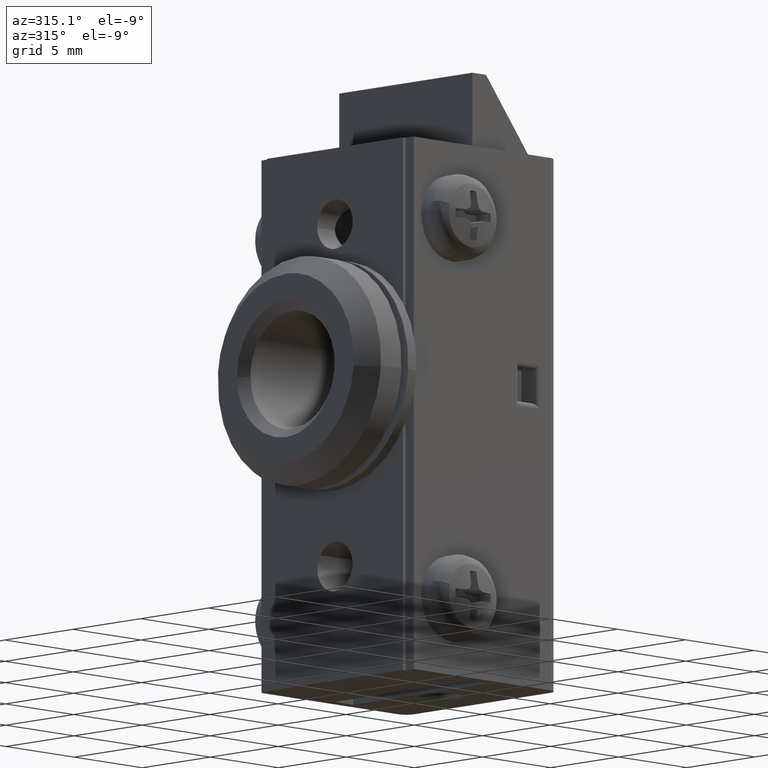
[diagram: clean part render]
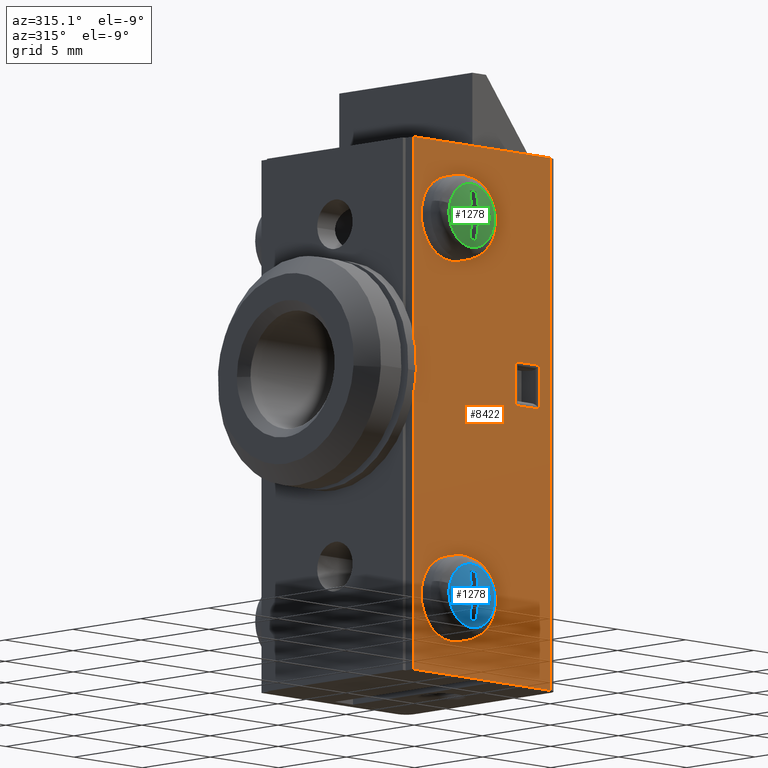
[diagram: same view with three faces highlighted in distinct colors, each labeled with its STEP entity id]
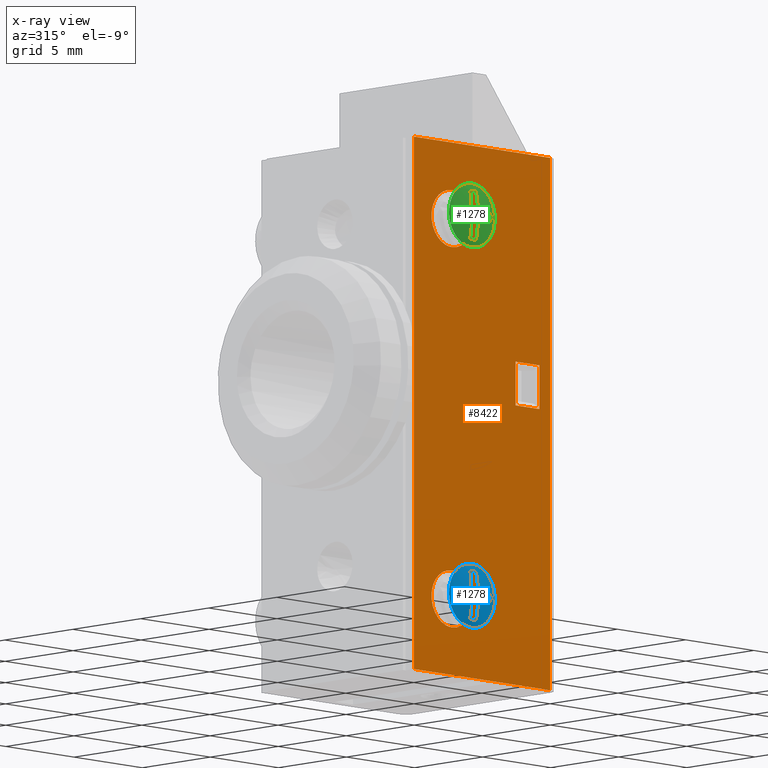
[diagram: x-ray of the same camera — body ghosted, the three highlighted faces saturated]
A machine part, auxiliary view with three faces highlighted in distinct colors.
The next image is the same camera in x-ray (body ghosted, the three faces saturated) — at least one of them is partly hidden behind the body in this view.
Their STEP definitions:

[orange] entity #8422 — the highlighted face is a freeform B-spline surface patch.
#5802=CARTESIAN_POINT('',(-9.288386320728851,-5.600006000000100,23.813807996805689));
#5803=VERTEX_POINT('',#5802);
#5809=CARTESIAN_POINT('',(-7.799986999999869,-5.600006000000100,22.500000000000000));
#5810=VERTEX_POINT('',#5809);
#5811=CARTESIAN_POINT('',(-9.288386320728852,-5.600006000000100,23.813807996805686));
#5812=CARTESIAN_POINT('',(-9.124034900091509,-5.600006000000100,22.500000000000000));
#5813=CARTESIAN_POINT('',(-7.799986999999869,-5.600006000000100,22.500000000000000));
#5821=(BOUNDED_CURVE()B_SPLINE_CURVE(2,(#5811,#5812,#5813),.UNSPECIFIED.,.F.,.U.)B_SPLINE_CURVE_WITH_KNOTS((3,3),(0.271473928987599,0.500000000000000),.UNSPECIFIED.)CURVE()GEOMETRIC_REPRESENTATION_ITEM()RATIONAL_B_SPLINE_CURVE((0.954005430241926,0.732265053913545,1.0))REPRESENTATION_ITEM(''));
#5822=EDGE_CURVE('',#5803,#5810,#5821,.T.);
#5824=CARTESIAN_POINT('',(-6.300044115405084,-5.600006000000100,24.013089803416079));
#5825=VERTEX_POINT('',#5824);
#5826=CARTESIAN_POINT('',(-7.799986999999869,-5.600006000000100,22.500000000000000));
#5827=CARTESIAN_POINT('',(-6.299986999999871,-5.600006000000100,22.500000000000000));
#5828=CARTESIAN_POINT('',(-6.299986999999870,-5.600006000000100,24.0));
#5829=CARTESIAN_POINT('',(-6.299986999999870,-5.600006000000100,24.006545026399582));
#5830=CARTESIAN_POINT('',(-6.300044115405084,-5.600006000000100,24.013089803416079));
#5838=(BOUNDED_CURVE()B_SPLINE_CURVE(2,(#5826,#5827,#5828,#5829,#5830),.UNSPECIFIED.,.F.,.U.)B_SPLINE_CURVE_WITH_KNOTS((3,2,3),(0.500000000000000,0.750000000000000,0.751539894374566),.UNSPECIFIED.)CURVE()GEOMETRIC_REPRESENTATION_ITEM()RATIONAL_B_SPLINE_CURVE((1.0,0.707106781186548,1.0,0.998195901520002,0.996414028008809))REPRESENTATION_ITEM(''));
#5839=EDGE_CURVE('',#5810,#5825,#5838,.T.);
#5919=CARTESIAN_POINT('',(-7.799986999999869,-5.600006000000100,25.500000000000000));
#5920=VERTEX_POINT('',#5919);
#5921=CARTESIAN_POINT('',(-6.300044115405084,-5.600006000000100,24.013089803416076));
#5922=CARTESIAN_POINT('',(-6.313020184441538,-5.600006000000100,25.500000000000011));
#5923=CARTESIAN_POINT('',(-7.799986999999869,-5.600006000000100,25.500000000000000));
#5931=(BOUNDED_CURVE()B_SPLINE_CURVE(2,(#5921,#5922,#5923),.UNSPECIFIED.,.F.,.U.)B_SPLINE_CURVE_WITH_KNOTS((3,3),(0.751539894374566,1.0),.UNSPECIFIED.)CURVE()GEOMETRIC_REPRESENTATION_ITEM()RATIONAL_B_SPLINE_CURVE((0.996414028008808,0.708910879666546,1.0))REPRESENTATION_ITEM(''));
#5932=EDGE_CURVE('',#5825,#5920,#5931,.T.);
#5934=CARTESIAN_POINT('',(-7.799986999999869,-5.600006000000100,25.500000000000000));
#5935=CARTESIAN_POINT('',(-9.299986999999868,-5.600006000000100,25.500000000000007));
#5936=CARTESIAN_POINT('',(-9.299986999999868,-5.600006000000100,24.0));
#5937=CARTESIAN_POINT('',(-9.299986999999870,-5.600006000000101,23.906542608624314));
#5938=CARTESIAN_POINT('',(-9.288386320728851,-5.600006000000100,23.813807996805693));
#5946=(BOUNDED_CURVE()B_SPLINE_CURVE(2,(#5934,#5935,#5936,#5937,#5938),.UNSPECIFIED.,.F.,.U.)B_SPLINE_CURVE_WITH_KNOTS((3,2,3),(0.0,0.250000000000000,0.271473928987599),.UNSPECIFIED.)CURVE()GEOMETRIC_REPRESENTATION_ITEM()RATIONAL_B_SPLINE_CURVE((1.0,0.707106781186548,1.0,0.974841727273002,0.954005430241926))REPRESENTATION_ITEM(''));
#5947=EDGE_CURVE('',#5920,#5803,#5946,.T.);
#6174=CARTESIAN_POINT('',(-9.288386320728849,-5.600006000000101,3.813807996805804));
#6175=VERTEX_POINT('',#6174);
#6181=CARTESIAN_POINT('',(-7.799986999999869,-5.600006000000100,2.500000000000116));
#6182=VERTEX_POINT('',#6181);
#6183=CARTESIAN_POINT('',(-9.288386320728849,-5.600006000000101,3.813807996805805));
#6184=CARTESIAN_POINT('',(-9.124034900091509,-5.600006000000099,2.500000000000116));
#6185=CARTESIAN_POINT('',(-7.799986999999869,-5.600006000000100,2.500000000000116));
#6193=(BOUNDED_CURVE()B_SPLINE_CURVE(2,(#6183,#6184,#6185),.UNSPECIFIED.,.F.,.U.)B_SPLINE_CURVE_WITH_KNOTS((3,3),(0.271473928987599,0.500000000000000),.UNSPECIFIED.)CURVE()GEOMETRIC_REPRESENTATION_ITEM()RATIONAL_B_SPLINE_CURVE((0.954005430241926,0.732265053913545,1.0))REPRESENTATION_ITEM(''));
#6194=EDGE_CURVE('',#6175,#6182,#6193,.T.);
#6196=CARTESIAN_POINT('',(-6.300044115405084,-5.600006000000100,4.013089803416197));
#6197=VERTEX_POINT('',#6196);
#6198=CARTESIAN_POINT('',(-7.799986999999869,-5.600006000000100,2.500000000000116));
#6199=CARTESIAN_POINT('',(-6.299986999999871,-5.600006000000100,2.500000000000116));
#6200=CARTESIAN_POINT('',(-6.299986999999870,-5.600006000000100,4.000000000000116));
#6201=CARTESIAN_POINT('',(-6.299986999999870,-5.600006000000100,4.006545026399695));
#6202=CARTESIAN_POINT('',(-6.300044115405084,-5.600006000000100,4.013089803416197));
#6210=(BOUNDED_CURVE()B_SPLINE_CURVE(2,(#6198,#6199,#6200,#6201,#6202),.UNSPECIFIED.,.F.,.U.)B_SPLINE_CURVE_WITH_KNOTS((3,2,3),(0.500000000000000,0.750000000000000,0.751539894374566),.UNSPECIFIED.)CURVE()GEOMETRIC_REPRESENTATION_ITEM()RATIONAL_B_SPLINE_CURVE((1.0,0.707106781186548,1.0,0.998195901520002,0.996414028008809))REPRESENTATION_ITEM(''));
#6211=EDGE_CURVE('',#6182,#6197,#6210,.T.);
#6291=CARTESIAN_POINT('',(-7.799986999999869,-5.600006000000100,5.500000000000116));
#6292=VERTEX_POINT('',#6291);
#6293=CARTESIAN_POINT('',(-6.300044115405084,-5.600006000000100,4.013089803416198));
#6294=CARTESIAN_POINT('',(-6.313020184441541,-5.600006000000099,5.500000000000116));
#6295=CARTESIAN_POINT('',(-7.799986999999869,-5.600006000000100,5.500000000000116));
#6303=(BOUNDED_CURVE()B_SPLINE_CURVE(2,(#6293,#6294,#6295),.UNSPECIFIED.,.F.,.U.)B_SPLINE_CURVE_WITH_KNOTS((3,3),(0.751539894374567,1.0),.UNSPECIFIED.)CURVE()GEOMETRIC_REPRESENTATION_ITEM()RATIONAL_B_SPLINE_CURVE((0.996414028008808,0.708910879666546,1.0))REPRESENTATION_ITEM(''));
#6304=EDGE_CURVE('',#6197,#6292,#6303,.T.);
#6306=CARTESIAN_POINT('',(-7.799986999999869,-5.600006000000100,5.500000000000116));
#6307=CARTESIAN_POINT('',(-9.299986999999868,-5.600006000000100,5.500000000000115));
#6308=CARTESIAN_POINT('',(-9.299986999999868,-5.600006000000100,4.000000000000116));
#6309=CARTESIAN_POINT('',(-9.299986999999868,-5.600006000000099,3.906542608624434));
#6310=CARTESIAN_POINT('',(-9.288386320728849,-5.600006000000101,3.813807996805804));
#6318=(BOUNDED_CURVE()B_SPLINE_CURVE(2,(#6306,#6307,#6308,#6309,#6310),.UNSPECIFIED.,.F.,.U.)B_SPLINE_CURVE_WITH_KNOTS((3,2,3),(0.0,0.250000000000000,0.271473928987599),.UNSPECIFIED.)CURVE()GEOMETRIC_REPRESENTATION_ITEM()RATIONAL_B_SPLINE_CURVE((1.0,0.707106781186548,1.0,0.974841727273002,0.954005430241926))REPRESENTATION_ITEM(''));
#6319=EDGE_CURVE('',#6292,#6175,#6318,.T.);
#6739=CARTESIAN_POINT('',(-3.124264068711815,-5.600006000000090,14.700000000000159));
#6740=VERTEX_POINT('',#6739);
#6763=CARTESIAN_POINT('',(-3.124264068711815,-5.600006000000090,16.999997000000000));
#6764=VERTEX_POINT('',#6763);
#6778=CARTESIAN_POINT('',(-3.124264068711815,-5.600006000000090,14.700000000000159));
#6779=CARTESIAN_POINT('',(-3.124264068711815,-5.600006000000090,16.999997000000000));
#6780=QUASI_UNIFORM_CURVE('',1,(#6778,#6779),.UNSPECIFIED.,.F.,.U.);
#6781=EDGE_CURVE('',#6740,#6764,#6780,.T.);
#6802=CARTESIAN_POINT('',(-1.375735931288072,-5.600006000000090,16.999997000000000));
#6803=VERTEX_POINT('',#6802);
#6817=CARTESIAN_POINT('',(-3.124264068711815,-5.600006000000090,16.999997000000000));
#6818=CARTESIAN_POINT('',(-1.375735931288072,-5.600006000000090,16.999997000000000));
#6819=QUASI_UNIFORM_CURVE('',1,(#6817,#6818),.UNSPECIFIED.,.F.,.U.);
#6820=EDGE_CURVE('',#6764,#6803,#6819,.T.);
#6898=CARTESIAN_POINT('',(-1.375735931288072,-5.600006000000090,14.700000000000159));
#6899=VERTEX_POINT('',#6898);
#6900=CARTESIAN_POINT('',(-1.375735931288072,-5.600006000000090,14.700000000000159));
#6901=CARTESIAN_POINT('',(-3.124264068711815,-5.600006000000090,14.700000000000159));
#6902=QUASI_UNIFORM_CURVE('',1,(#6900,#6901),.UNSPECIFIED.,.F.,.U.);
#6903=EDGE_CURVE('',#6899,#6740,#6902,.T.);
#6956=CARTESIAN_POINT('',(-1.375735931288072,-5.600006000000090,16.999997000000000));
#6957=CARTESIAN_POINT('',(-1.375735931288072,-5.600006000000090,14.700000000000159));
#6958=QUASI_UNIFORM_CURVE('',1,(#6956,#6957),.UNSPECIFIED.,.F.,.U.);
#6959=EDGE_CURVE('',#6803,#6899,#6958,.T.);
#7889=CARTESIAN_POINT('',(-0.600000000000000,-5.600006000000090,0.0));
#7890=VERTEX_POINT('',#7889);
#7911=CARTESIAN_POINT('',(-0.600000000000000,-5.600006000000090,28.0));
#7912=VERTEX_POINT('',#7911);
#7926=CARTESIAN_POINT('',(-0.600000000000000,-5.600006000000090,0.0));
#7927=CARTESIAN_POINT('',(-0.600000000000000,-5.600006000000090,28.0));
#7928=QUASI_UNIFORM_CURVE('',1,(#7926,#7927),.UNSPECIFIED.,.F.,.U.);
#7929=EDGE_CURVE('',#7890,#7912,#7928,.T.);
#8133=CARTESIAN_POINT('',(-10.600006000000119,-5.600006000000090,28.0));
#8134=VERTEX_POINT('',#8133);
#8140=CARTESIAN_POINT('',(-10.600006000000119,-5.600006000000090,28.0));
#8141=CARTESIAN_POINT('',(-0.600000000000000,-5.600006000000090,28.0));
#8142=QUASI_UNIFORM_CURVE('',1,(#8140,#8141),.UNSPECIFIED.,.F.,.U.);
#8143=EDGE_CURVE('',#8134,#7912,#8142,.T.);
#8230=CARTESIAN_POINT('',(-10.600006000000119,-5.600006000000090,0.0));
#8231=VERTEX_POINT('',#8230);
#8237=CARTESIAN_POINT('',(-10.600006000000119,-5.600006000000090,0.0));
#8238=CARTESIAN_POINT('',(-10.600006000000119,-5.600006000000090,28.0));
#8239=QUASI_UNIFORM_CURVE('',1,(#8237,#8238),.UNSPECIFIED.,.F.,.U.);
#8240=EDGE_CURVE('',#8231,#8134,#8239,.T.);
#8322=CARTESIAN_POINT('',(-10.600006000000119,-5.600006000000090,0.0));
#8323=CARTESIAN_POINT('',(-0.600000000000000,-5.600006000000090,0.0));
#8324=QUASI_UNIFORM_CURVE('',1,(#8322,#8323),.UNSPECIFIED.,.F.,.U.);
#8325=EDGE_CURVE('',#8231,#7890,#8324,.T.);
#8393=CARTESIAN_POINT('',(-11.099506374191080,-5.600006000000090,29.398599945730570));
#8394=CARTESIAN_POINT('',(-11.099506374191080,-5.600006000000091,-1.398600696749092));
#8395=CARTESIAN_POINT('',(-0.100499446995002,-5.600006000000090,29.398599945730570));
#8396=CARTESIAN_POINT('',(-0.100499446995002,-5.600006000000091,-1.398600696749092));
#8397=B_SPLINE_SURFACE_WITH_KNOTS('',1,1,((#8393,#8395),(#8394,#8396)),.UNSPECIFIED.,.F.,.F.,.U.,(2,2),(2,2),(0.0,30.797200642479659),(0.0,10.999006927196080),.UNSPECIFIED.);
#8398=ORIENTED_EDGE('',*,*,#8325,.T.);
#8399=ORIENTED_EDGE('',*,*,#7929,.T.);
#8400=ORIENTED_EDGE('',*,*,#8143,.F.);
#8401=ORIENTED_EDGE('',*,*,#8240,.F.);
#8402=EDGE_LOOP('',(#8398,#8399,#8400,#8401));
#8403=FACE_OUTER_BOUND('',#8402,.T.);
#8404=ORIENTED_EDGE('',*,*,#6959,.T.);
#8405=ORIENTED_EDGE('',*,*,#6903,.T.);
#8406=ORIENTED_EDGE('',*,*,#6781,.T.);
#8407=ORIENTED_EDGE('',*,*,#6820,.T.);
#8408=EDGE_LOOP('',(#8404,#8405,#8406,#8407));
#8409=FACE_BOUND('',#8408,.T.);
#8410=ORIENTED_EDGE('',*,*,#6211,.F.);
#8411=ORIENTED_EDGE('',*,*,#6194,.F.);
#8412=ORIENTED_EDGE('',*,*,#6319,.F.);
#8413=ORIENTED_EDGE('',*,*,#6304,.F.);
#8414=EDGE_LOOP('',(#8410,#8411,#8412,#8413));
#8415=FACE_BOUND('',#8414,.T.);
#8416=ORIENTED_EDGE('',*,*,#5839,.F.);
#8417=ORIENTED_EDGE('',*,*,#5822,.F.);
#8418=ORIENTED_EDGE('',*,*,#5947,.F.);
#8419=ORIENTED_EDGE('',*,*,#5932,.F.);
#8420=EDGE_LOOP('',(#8416,#8417,#8418,#8419));
#8421=FACE_BOUND('',#8420,.T.);
#8422=ADVANCED_FACE('',(#8403,#8409,#8415,#8421),#8397,.T.);

[blue] entity #1278 — the highlighted face is a freeform B-spline surface patch.
#283=CARTESIAN_POINT('',(-9.409532855611982,-7.062032371019841,24.456669459876309));
#284=VERTEX_POINT('',#283);
#285=CARTESIAN_POINT('',(-7.799986999999869,-7.062033736562820,25.673076858853719));
#286=VERTEX_POINT('',#285);
#287=CARTESIAN_POINT('',(-9.409532855611982,-7.062032371019841,24.456669459876309));
#288=CARTESIAN_POINT('',(-9.064407083830481,-7.062033053791332,25.673076805068089));
#289=CARTESIAN_POINT('',(-7.799986999999869,-7.062033736562820,25.673076858853719));
#297=(BOUNDED_CURVE()B_SPLINE_CURVE(2,(#287,#288,#289),.UNSPECIFIED.,.F.,.U.)B_SPLINE_CURVE_WITH_KNOTS((3,3),(0.796505535840531,1.0),.UNSPECIFIED.)CURVE()GEOMETRIC_REPRESENTATION_ITEM()RATIONAL_B_SPLINE_CURVE((0.911301444520160,0.761591405526458,1.0))REPRESENTATION_ITEM(''));
#298=EDGE_CURVE('',#284,#286,#297,.T.);
#300=CARTESIAN_POINT('',(-6.190441144387757,-7.062032371019841,23.543330540123691));
#301=VERTEX_POINT('',#300);
#302=CARTESIAN_POINT('',(-7.799986999999869,-7.062033736562820,25.673076858853719));
#303=CARTESIAN_POINT('',(-6.126910284412166,-7.062033220561354,25.673076899501964));
#304=CARTESIAN_POINT('',(-6.126910473981291,-7.062032537789865,24.000000094433869));
#305=CARTESIAN_POINT('',(-6.126910500353630,-7.062032442804558,23.767246214658382));
#306=CARTESIAN_POINT('',(-6.190441144387758,-7.062032371019841,23.543330540123694));
#314=(BOUNDED_CURVE()B_SPLINE_CURVE(2,(#302,#303,#304,#305,#306),.UNSPECIFIED.,.F.,.U.)B_SPLINE_CURVE_WITH_KNOTS((3,2,3),(0.0,0.250000000000000,0.296505535840531),.UNSPECIFIED.)CURVE()GEOMETRIC_REPRESENTATION_ITEM()RATIONAL_B_SPLINE_CURVE((1.0,0.707106781186547,1.0,0.945515375660090,0.911301444520160))REPRESENTATION_ITEM(''));
#315=EDGE_CURVE('',#286,#301,#314,.T.);
#372=CARTESIAN_POINT('',(-7.799986999999869,-7.062033736562820,22.326923141146288));
#373=VERTEX_POINT('',#372);
#374=CARTESIAN_POINT('',(-7.799986999999869,-7.062033736562820,22.326923141146288));
#375=CARTESIAN_POINT('',(-9.473063715587575,-7.062033220561354,22.326923100498043));
#376=CARTESIAN_POINT('',(-9.473063526018450,-7.062032537789865,23.999999905566131));
#377=CARTESIAN_POINT('',(-9.473063499646111,-7.062032442804558,24.232753785341622));
#378=CARTESIAN_POINT('',(-9.409532855611982,-7.062032371019841,24.456669459876309));
#386=(BOUNDED_CURVE()B_SPLINE_CURVE(2,(#374,#375,#376,#377,#378),.UNSPECIFIED.,.F.,.U.)B_SPLINE_CURVE_WITH_KNOTS((3,2,3),(0.500000000000000,0.750000000000000,0.796505535840531),.UNSPECIFIED.)CURVE()GEOMETRIC_REPRESENTATION_ITEM()RATIONAL_B_SPLINE_CURVE((1.0,0.707106781186547,1.0,0.945515375660090,0.911301444520160))REPRESENTATION_ITEM(''));
#387=EDGE_CURVE('',#373,#284,#386,.T.);
#394=CARTESIAN_POINT('',(-6.190441144387758,-7.062032371019841,23.543330540123694));
#395=CARTESIAN_POINT('',(-6.535566916169260,-7.062033053791332,22.326923194931911));
#396=CARTESIAN_POINT('',(-7.799986999999869,-7.062033736562820,22.326923141146288));
#404=(BOUNDED_CURVE()B_SPLINE_CURVE(2,(#394,#395,#396),.UNSPECIFIED.,.F.,.U.)B_SPLINE_CURVE_WITH_KNOTS((3,3),(0.296505535840531,0.500000000000000),.UNSPECIFIED.)CURVE()GEOMETRIC_REPRESENTATION_ITEM()RATIONAL_B_SPLINE_CURVE((0.911301444520160,0.761591405526458,1.0))REPRESENTATION_ITEM(''));
#405=EDGE_CURVE('',#301,#373,#404,.T.);
#595=CARTESIAN_POINT('',(-8.141166050717381,-7.280587019466419,24.341178867877002));
#596=VERTEX_POINT('',#595);
#603=CARTESIAN_POINT('',(-8.047688999999879,-7.266322334240530,24.584695000000199));
#604=VERTEX_POINT('',#603);
#610=CARTESIAN_POINT('',(-8.141166050717384,-7.280587019466426,24.341178867877002));
#611=CARTESIAN_POINT('',(-8.094371719086645,-7.276302203356472,24.463082314300916));
#612=CARTESIAN_POINT('',(-8.047688999999879,-7.266322334240529,24.584695000000199));
#620=(BOUNDED_CURVE()B_SPLINE_CURVE(2,(#610,#611,#612),.UNSPECIFIED.,.F.,.U.)CURVE()GEOMETRIC_REPRESENTATION_ITEM()QUASI_UNIFORM_CURVE()RATIONAL_B_SPLINE_CURVE((1.0,0.999761736042455,1.0))REPRESENTATION_ITEM(''));
#621=EDGE_CURVE('',#596,#604,#620,.T.);
#631=CARTESIAN_POINT('',(-8.384701422791810,-7.266320650991710,24.247696695883452));
#632=VERTEX_POINT('',#631);
#640=CARTESIAN_POINT('',(-8.384701422791810,-7.266320650991710,24.247696695883452));
#641=CARTESIAN_POINT('',(-8.263079143746344,-7.276301794542070,24.294381965386169));
#642=CARTESIAN_POINT('',(-8.141166050717381,-7.280587019466419,24.341178867877002));
#650=(BOUNDED_CURVE()B_SPLINE_CURVE(2,(#640,#641,#642),.UNSPECIFIED.,.F.,.U.)CURVE()GEOMETRIC_REPRESENTATION_ITEM()QUASI_UNIFORM_CURVE()RATIONAL_B_SPLINE_CURVE((1.0,0.999761699803784,1.0))REPRESENTATION_ITEM(''));
#651=EDGE_CURVE('',#632,#596,#650,.T.);
#661=CARTESIAN_POINT('',(-9.078461215119310,-7.157493065141100,24.235587048610601));
#662=VERTEX_POINT('',#661);
#670=CARTESIAN_POINT('',(-9.078461215119308,-7.157493065141098,24.235587048610590));
#671=CARTESIAN_POINT('',(-8.734774047114977,-7.232266229918767,24.241586142854388));
#672=CARTESIAN_POINT('',(-8.384701422791810,-7.266320650991708,24.247696695883430));
#680=(BOUNDED_CURVE()B_SPLINE_CURVE(2,(#670,#671,#672),.UNSPECIFIED.,.F.,.U.)CURVE()GEOMETRIC_REPRESENTATION_ITEM()QUASI_UNIFORM_CURVE()RATIONAL_B_SPLINE_CURVE((1.0,0.998282533637158,1.0))REPRESENTATION_ITEM(''));
#681=EDGE_CURVE('',#662,#632,#680,.T.);
#700=CARTESIAN_POINT('',(-9.078464999999879,-7.157492858242850,23.764405000000000));
#701=VERTEX_POINT('',#700);
#702=CARTESIAN_POINT('',(-9.078461215119310,-7.157493065141100,24.235587048610601));
#703=CARTESIAN_POINT('',(-9.121876558919917,-7.157492961691975,23.999995905188630));
#704=CARTESIAN_POINT('',(-9.078464999999879,-7.157492858242850,23.764405000000000));
#712=(BOUNDED_CURVE()B_SPLINE_CURVE(2,(#702,#703,#704),.UNSPECIFIED.,.F.,.U.)CURVE()GEOMETRIC_REPRESENTATION_ITEM()QUASI_UNIFORM_CURVE()RATIONAL_B_SPLINE_CURVE((1.0,0.983441911933026,1.0))REPRESENTATION_ITEM(''));
#713=EDGE_CURVE('',#662,#701,#712,.T.);
#730=CARTESIAN_POINT('',(-8.384661484994719,-7.266324203073791,23.752294589543300));
#731=VERTEX_POINT('',#730);
#739=CARTESIAN_POINT('',(-8.384661484994719,-7.266324203073788,23.752294589543339));
#740=CARTESIAN_POINT('',(-8.734756209401665,-7.232270004842940,23.758405528331615));
#741=CARTESIAN_POINT('',(-9.078464999999879,-7.157492858242850,23.764405000000000));
#749=(BOUNDED_CURVE()B_SPLINE_CURVE(2,(#739,#740,#741),.UNSPECIFIED.,.F.,.U.)CURVE()GEOMETRIC_REPRESENTATION_ITEM()QUASI_UNIFORM_CURVE()RATIONAL_B_SPLINE_CURVE((1.0,0.998282319381432,1.0))REPRESENTATION_ITEM(''));
#750=EDGE_CURVE('',#731,#701,#749,.T.);
#760=CARTESIAN_POINT('',(-8.141163941885049,-7.280587324002140,23.658824361556949));
#761=VERTEX_POINT('',#760);
#769=CARTESIAN_POINT('',(-8.141163941885063,-7.280587324002136,23.658824361556910));
#770=CARTESIAN_POINT('',(-8.263058066736507,-7.276302857251062,23.705615271619344));
#771=CARTESIAN_POINT('',(-8.384661484994712,-7.266324203073791,23.752294589543300));
#779=(BOUNDED_CURVE()B_SPLINE_CURVE(2,(#769,#770,#771),.UNSPECIFIED.,.F.,.U.)CURVE()GEOMETRIC_REPRESENTATION_ITEM()QUASI_UNIFORM_CURVE()RATIONAL_B_SPLINE_CURVE((1.0,0.999761772286104,1.0))REPRESENTATION_ITEM(''));
#780=EDGE_CURVE('',#761,#731,#779,.T.);
#790=CARTESIAN_POINT('',(-8.047688681351081,-7.266321990220420,23.415301354592302));
#791=VERTEX_POINT('',#790);
#799=CARTESIAN_POINT('',(-8.047688681351081,-7.266321990220420,23.415301354592302));
#800=CARTESIAN_POINT('',(-8.094370502839071,-7.276302310019867,23.536917470694551));
#801=CARTESIAN_POINT('',(-8.141163941885049,-7.280587324002140,23.658824361556949));
#809=(BOUNDED_CURVE()B_SPLINE_CURVE(2,(#799,#800,#801),.UNSPECIFIED.,.F.,.U.)CURVE()GEOMETRIC_REPRESENTATION_ITEM()QUASI_UNIFORM_CURVE()RATIONAL_B_SPLINE_CURVE((1.0,0.999761725462945,1.0))REPRESENTATION_ITEM(''));
#810=EDGE_CURVE('',#791,#761,#809,.T.);
#820=CARTESIAN_POINT('',(-8.035576943547040,-7.157492944554560,22.721525765858850));
#821=VERTEX_POINT('',#820);
#829=CARTESIAN_POINT('',(-8.035576943547040,-7.157492944554560,22.721525765858850));
#830=CARTESIAN_POINT('',(-8.041577080444807,-7.232267765608499,23.065220714661077));
#831=CARTESIAN_POINT('',(-8.047688681351081,-7.266321990220420,23.415301354592302));
#839=(BOUNDED_CURVE()B_SPLINE_CURVE(2,(#829,#830,#831),.UNSPECIFIED.,.F.,.U.)CURVE()GEOMETRIC_REPRESENTATION_ITEM()QUASI_UNIFORM_CURVE()RATIONAL_B_SPLINE_CURVE((1.0,0.998282455879265,1.0))REPRESENTATION_ITEM(''));
#840=EDGE_CURVE('',#821,#791,#839,.T.);
#859=CARTESIAN_POINT('',(-7.564398999999870,-7.157492858242850,22.721526000000001));
#860=VERTEX_POINT('',#859);
#861=CARTESIAN_POINT('',(-8.035576943547040,-7.157492944554560,22.721525765858850));
#862=CARTESIAN_POINT('',(-7.799987950200941,-7.157492858242860,22.678112373763181));
#863=CARTESIAN_POINT('',(-7.564398999999870,-7.157492858242850,22.721526000000001));
#871=(BOUNDED_CURVE()B_SPLINE_CURVE(2,(#861,#862,#863),.UNSPECIFIED.,.F.,.U.)CURVE()GEOMETRIC_REPRESENTATION_ITEM()QUASI_UNIFORM_CURVE()RATIONAL_B_SPLINE_CURVE((1.0,0.983442143036417,1.0))REPRESENTATION_ITEM(''));
#872=EDGE_CURVE('',#821,#860,#871,.T.);
#889=CARTESIAN_POINT('',(-7.552289307963649,-7.266320098038590,23.415280357006601));
#890=VERTEX_POINT('',#889);
#898=CARTESIAN_POINT('',(-7.552289307963643,-7.266320098038592,23.415280357006608));
#899=CARTESIAN_POINT('',(-7.558399883694699,-7.232265637627360,23.065210468807958));
#900=CARTESIAN_POINT('',(-7.564398999999870,-7.157492858242850,22.721526000000001));
#908=(BOUNDED_CURVE()B_SPLINE_CURVE(2,(#898,#899,#900),.UNSPECIFIED.,.F.,.U.)CURVE()GEOMETRIC_REPRESENTATION_ITEM()QUASI_UNIFORM_CURVE()RATIONAL_B_SPLINE_CURVE((1.0,0.998282560085386,1.0))REPRESENTATION_ITEM(''));
#909=EDGE_CURVE('',#890,#860,#908,.T.);
#919=CARTESIAN_POINT('',(-7.458804848275101,-7.280586537809750,23.658815790166749));
#920=VERTEX_POINT('',#919);
#928=CARTESIAN_POINT('',(-7.458804848275110,-7.280586537809756,23.658815790166759));
#929=CARTESIAN_POINT('',(-7.505602895691931,-7.276301296481652,23.536902663785359));
#930=CARTESIAN_POINT('',(-7.552289307963647,-7.266320098038595,23.415280357006601));
#938=(BOUNDED_CURVE()B_SPLINE_CURVE(2,(#928,#929,#930),.UNSPECIFIED.,.F.,.U.)CURVE()GEOMETRIC_REPRESENTATION_ITEM()QUASI_UNIFORM_CURVE()RATIONAL_B_SPLINE_CURVE((1.0,0.999761698176571,1.0))REPRESENTATION_ITEM(''));
#939=EDGE_CURVE('',#920,#890,#938,.T.);
#949=CARTESIAN_POINT('',(-7.215280035545800,-7.266321170387810,23.752298208840848));
#950=VERTEX_POINT('',#949);
#958=CARTESIAN_POINT('',(-7.215280035545800,-7.266321170387810,23.752298208840848));
#959=CARTESIAN_POINT('',(-7.336897047219473,-7.276301599779382,23.705612811046848));
#960=CARTESIAN_POINT('',(-7.458804848275101,-7.280586537809750,23.658815790166749));
#968=(BOUNDED_CURVE()B_SPLINE_CURVE(2,(#958,#959,#960),.UNSPECIFIED.,.F.,.U.)CURVE()GEOMETRIC_REPRESENTATION_ITEM()QUASI_UNIFORM_CURVE()RATIONAL_B_SPLINE_CURVE((1.0,0.999761717680049,1.0))REPRESENTATION_ITEM(''));
#969=EDGE_CURVE('',#950,#920,#968,.T.);
#979=CARTESIAN_POINT('',(-6.521512720740530,-7.157492851489180,23.764407987419599));
#980=VERTEX_POINT('',#979);
#988=CARTESIAN_POINT('',(-6.521512720740528,-7.157492851489186,23.764407987419581));
#989=CARTESIAN_POINT('',(-6.865203593941339,-7.232266823782491,23.758408828501061));
#990=CARTESIAN_POINT('',(-7.215280035545797,-7.266321170387817,23.752298208840848));
#998=(BOUNDED_CURVE()B_SPLINE_CURVE(2,(#988,#989,#990),.UNSPECIFIED.,.F.,.U.)CURVE()GEOMETRIC_REPRESENTATION_ITEM()QUASI_UNIFORM_CURVE()RATIONAL_B_SPLINE_CURVE((1.0,0.998282496576275,1.0))REPRESENTATION_ITEM(''));
#999=EDGE_CURVE('',#980,#950,#998,.T.);
#1018=CARTESIAN_POINT('',(-6.521511999999860,-7.157492858242850,24.235599000000100));
#1019=VERTEX_POINT('',#1018);
#1020=CARTESIAN_POINT('',(-6.521512720740530,-7.157492851489180,23.764407987419599));
#1021=CARTESIAN_POINT('',(-6.478097186225894,-7.157492854866015,24.000003606273598));
#1022=CARTESIAN_POINT('',(-6.521511999999860,-7.157492858242850,24.235599000000100));
#1030=(BOUNDED_CURVE()B_SPLINE_CURVE(2,(#1020,#1021,#1022),.UNSPECIFIED.,.F.,.U.)CURVE()GEOMETRIC_REPRESENTATION_ITEM()QUASI_UNIFORM_CURVE()RATIONAL_B_SPLINE_CURVE((1.0,0.983441260386393,1.0))REPRESENTATION_ITEM(''));
#1031=EDGE_CURVE('',#980,#1019,#1030,.T.);
#1048=CARTESIAN_POINT('',(-7.215306059646110,-7.266323411251820,24.247709245412750));
#1049=VERTEX_POINT('',#1048);
#1057=CARTESIAN_POINT('',(-7.215306059646115,-7.266323411251821,24.247709245412761));
#1058=CARTESIAN_POINT('',(-6.865216091658626,-7.232269296306245,24.241598389648171));
#1059=CARTESIAN_POINT('',(-6.521511999999860,-7.157492858242850,24.235599000000100));
#1067=(BOUNDED_CURVE()B_SPLINE_CURVE(2,(#1057,#1058,#1059),.UNSPECIFIED.,.F.,.U.)CURVE()GEOMETRIC_REPRESENTATION_ITEM()QUASI_UNIFORM_CURVE()RATIONAL_B_SPLINE_CURVE((1.0,0.998282365479331,1.0))REPRESENTATION_ITEM(''));
#1068=EDGE_CURVE('',#1049,#1019,#1067,.T.);
#1078=CARTESIAN_POINT('',(-7.458809560298680,-7.280586946920800,24.341181750539800));
#1079=VERTEX_POINT('',#1078);
#1087=CARTESIAN_POINT('',(-7.458809560298678,-7.280586946920793,24.341181750539810));
#1088=CARTESIAN_POINT('',(-7.336912448878584,-7.276302412320462,24.294389698919808));
#1089=CARTESIAN_POINT('',(-7.215306059646108,-7.266323411251822,24.247709245412750));
#1097=(BOUNDED_CURVE()B_SPLINE_CURVE(2,(#1087,#1088,#1089),.UNSPECIFIED.,.F.,.U.)CURVE()GEOMETRIC_REPRESENTATION_ITEM()QUASI_UNIFORM_CURVE()RATIONAL_B_SPLINE_CURVE((1.0,0.999761760592690,1.0))REPRESENTATION_ITEM(''));
#1098=EDGE_CURVE('',#1079,#1049,#1097,.T.);
#1108=CARTESIAN_POINT('',(-7.552288401181010,-7.266322550918590,24.584694229865701));
#1109=VERTEX_POINT('',#1108);
#1117=CARTESIAN_POINT('',(-7.552288401181010,-7.266322550918590,24.584694229865701));
#1118=CARTESIAN_POINT('',(-7.505604786222108,-7.276302214750817,24.463083368021074));
#1119=CARTESIAN_POINT('',(-7.458809560298680,-7.280586946920800,24.341181750539800));
#1127=(BOUNDED_CURVE()B_SPLINE_CURVE(2,(#1117,#1118,#1119),.UNSPECIFIED.,.F.,.U.)CURVE()GEOMETRIC_REPRESENTATION_ITEM()QUASI_UNIFORM_CURVE()RATIONAL_B_SPLINE_CURVE((1.0,0.999761741124119,1.0))REPRESENTATION_ITEM(''));
#1128=EDGE_CURVE('',#1109,#1079,#1127,.T.);
#1138=CARTESIAN_POINT('',(-7.564398864289640,-7.157493019241100,25.278474225092950));
#1139=VERTEX_POINT('',#1138);
#1147=CARTESIAN_POINT('',(-7.564398864289645,-7.157493019241096,25.278474225092950));
#1148=CARTESIAN_POINT('',(-7.558399665455323,-7.232268352708586,24.934777101982700));
#1149=CARTESIAN_POINT('',(-7.552288401181010,-7.266322550918590,24.584694229865701));
#1157=(BOUNDED_CURVE()B_SPLINE_CURVE(2,(#1147,#1148,#1149),.UNSPECIFIED.,.F.,.U.)CURVE()GEOMETRIC_REPRESENTATION_ITEM()QUASI_UNIFORM_CURVE()RATIONAL_B_SPLINE_CURVE((1.0,0.998282434382197,1.0))REPRESENTATION_ITEM(''));
#1158=EDGE_CURVE('',#1139,#1109,#1157,.T.);
#1177=CARTESIAN_POINT('',(-8.035578903820499,-7.157492858242850,25.278474268358249));
#1178=VERTEX_POINT('',#1177);
#1179=CARTESIAN_POINT('',(-7.564398864289640,-7.157493019241100,25.278474225092950));
#1180=CARTESIAN_POINT('',(-7.799988880069251,-7.157492858242860,25.321887814950774));
#1181=CARTESIAN_POINT('',(-8.035578903820499,-7.157492858242860,25.278474268358259));
#1189=(BOUNDED_CURVE()B_SPLINE_CURVE(2,(#1179,#1180,#1181),.UNSPECIFIED.,.F.,.U.)CURVE()GEOMETRIC_REPRESENTATION_ITEM()QUASI_UNIFORM_CURVE()RATIONAL_B_SPLINE_CURVE((1.0,0.983442002638553,1.0))REPRESENTATION_ITEM(''));
#1190=EDGE_CURVE('',#1139,#1178,#1189,.T.);
#1210=CARTESIAN_POINT('',(-8.047688999999879,-7.266322334240530,24.584695000000199));
#1211=CARTESIAN_POINT('',(-8.041578220548784,-7.232268108832280,24.934777507344648));
#1212=CARTESIAN_POINT('',(-8.035578903820499,-7.157492858242850,25.278474268358249));
#1220=(BOUNDED_CURVE()B_SPLINE_CURVE(2,(#1210,#1211,#1212),.UNSPECIFIED.,.F.,.U.)CURVE()GEOMETRIC_REPRESENTATION_ITEM()QUASI_UNIFORM_CURVE()RATIONAL_B_SPLINE_CURVE((1.0,0.998282437880726,1.0))REPRESENTATION_ITEM(''));
#1221=EDGE_CURVE('',#604,#1178,#1220,.T.);
#1226=CARTESIAN_POINT('',(-9.589039215607219,-6.740209339160906,22.210133735853507));
#1227=CARTESIAN_POINT('',(-8.715866668157164,-7.013302086920173,22.167407218180067));
#1228=CARTESIAN_POINT('',(-6.884107216167256,-7.013302098250311,22.167407218180067));
#1229=CARTESIAN_POINT('',(-6.010934504649301,-6.740209252752105,22.210133752835180));
#1230=CARTESIAN_POINT('',(-9.631786103760746,-7.013556607134820,23.083683683550131));
#1231=CARTESIAN_POINT('',(-8.738285505429264,-7.300018989237008,23.061274555980379));
#1232=CARTESIAN_POINT('',(-6.861688377880521,-7.300019000844483,23.061274555980379));
#1233=CARTESIAN_POINT('',(-5.968187612000460,-7.013556516005998,23.083683692451551));
#1234=CARTESIAN_POINT('',(-9.631786103760746,-7.013556616816371,24.916316209492908));
#1235=CARTESIAN_POINT('',(-8.738285505429264,-7.300018999155327,24.938725332896599));
#1236=CARTESIAN_POINT('',(-6.861688377880521,-7.300019010762802,24.938725332896599));
#1237=CARTESIAN_POINT('',(-5.968187612000460,-7.013556525687548,24.916316200591478));
#1238=CARTESIAN_POINT('',(-9.589039219852635,-6.740209385219684,25.789866119910112));
#1239=CARTESIAN_POINT('',(-8.715866670382424,-7.013302134741951,25.832592632730972));
#1240=CARTESIAN_POINT('',(-6.884107213941995,-7.013302146072089,25.832592632730972));
#1241=CARTESIAN_POINT('',(-6.010934500403885,-6.740209298810880,25.789866102928478));
#1249=(BOUNDED_SURFACE()B_SPLINE_SURFACE(2,2,((#1226,#1230,#1234,#1238),(#1227,#1231,#1235,#1239),(#1228,#1232,#1236,#1240),(#1229,#1233,#1237,#1241)),.UNSPECIFIED.,.F.,.F.,.U.)B_SPLINE_SURFACE_WITH_KNOTS((3,1,3),(3,1,3),(0.0,1.853917229133746,3.707834835482007),(0.0,1.854760797437536,3.709521500571443),.UNSPECIFIED.)GEOMETRIC_REPRESENTATION_ITEM()RATIONAL_B_SPLINE_SURFACE(((1.048933594871837,1.024455667101283,1.024455667101283,1.048933592382721),(1.024477927770553,1.0,1.0,1.024477925281437),(1.024477927770553,1.0,1.0,1.024477925281437),(1.048933604823773,1.024455677053220,1.024455677053220,1.048933602334657)))REPRESENTATION_ITEM('')SURFACE());
#1250=ORIENTED_EDGE('',*,*,#405,.F.);
#1251=ORIENTED_EDGE('',*,*,#315,.F.);
#1252=ORIENTED_EDGE('',*,*,#298,.F.);
#1253=ORIENTED_EDGE('',*,*,#387,.F.);
#1254=EDGE_LOOP('',(#1250,#1251,#1252,#1253));
#1255=FACE_OUTER_BOUND('',#1254,.T.);
#1256=ORIENTED_EDGE('',*,*,#621,.T.);
#1257=ORIENTED_EDGE('',*,*,#1221,.T.);
#1258=ORIENTED_EDGE('',*,*,#1190,.F.);
#1259=ORIENTED_EDGE('',*,*,#1158,.T.);
#1260=ORIENTED_EDGE('',*,*,#1128,.T.);
#1261=ORIENTED_EDGE('',*,*,#1098,.T.);
#1262=ORIENTED_EDGE('',*,*,#1068,.T.);
#1263=ORIENTED_EDGE('',*,*,#1031,.F.);
#1264=ORIENTED_EDGE('',*,*,#999,.T.);
#1265=ORIENTED_EDGE('',*,*,#969,.T.);
#1266=ORIENTED_EDGE('',*,*,#939,.T.);
#1267=ORIENTED_EDGE('',*,*,#909,.T.);
#1268=ORIENTED_EDGE('',*,*,#872,.F.);
#1269=ORIENTED_EDGE('',*,*,#840,.T.);
#1270=ORIENTED_EDGE('',*,*,#810,.T.);
#1271=ORIENTED_EDGE('',*,*,#780,.T.);
#1272=ORIENTED_EDGE('',*,*,#750,.T.);
#1273=ORIENTED_EDGE('',*,*,#713,.F.);
#1274=ORIENTED_EDGE('',*,*,#681,.T.);
#1275=ORIENTED_EDGE('',*,*,#651,.T.);
#1276=EDGE_LOOP('',(#1256,#1257,#1258,#1259,#1260,#1261,#1262,#1263,#1264,#1265,#1266,#1267,#1268,#1269,#1270,#1271,#1272,#1273,#1274,#1275));
#1277=FACE_BOUND('',#1276,.T.);
#1278=ADVANCED_FACE('',(#1255,#1277),#1249,.T.);

[green] entity #1278 — the highlighted face is a freeform B-spline surface patch.
#283=CARTESIAN_POINT('',(-9.409532855611982,-7.062032371019841,24.456669459876309));
#284=VERTEX_POINT('',#283);
#285=CARTESIAN_POINT('',(-7.799986999999869,-7.062033736562820,25.673076858853719));
#286=VERTEX_POINT('',#285);
#287=CARTESIAN_POINT('',(-9.409532855611982,-7.062032371019841,24.456669459876309));
#288=CARTESIAN_POINT('',(-9.064407083830481,-7.062033053791332,25.673076805068089));
#289=CARTESIAN_POINT('',(-7.799986999999869,-7.062033736562820,25.673076858853719));
#297=(BOUNDED_CURVE()B_SPLINE_CURVE(2,(#287,#288,#289),.UNSPECIFIED.,.F.,.U.)B_SPLINE_CURVE_WITH_KNOTS((3,3),(0.796505535840531,1.0),.UNSPECIFIED.)CURVE()GEOMETRIC_REPRESENTATION_ITEM()RATIONAL_B_SPLINE_CURVE((0.911301444520160,0.761591405526458,1.0))REPRESENTATION_ITEM(''));
#298=EDGE_CURVE('',#284,#286,#297,.T.);
#300=CARTESIAN_POINT('',(-6.190441144387757,-7.062032371019841,23.543330540123691));
#301=VERTEX_POINT('',#300);
#302=CARTESIAN_POINT('',(-7.799986999999869,-7.062033736562820,25.673076858853719));
#303=CARTESIAN_POINT('',(-6.126910284412166,-7.062033220561354,25.673076899501964));
#304=CARTESIAN_POINT('',(-6.126910473981291,-7.062032537789865,24.000000094433869));
#305=CARTESIAN_POINT('',(-6.126910500353630,-7.062032442804558,23.767246214658382));
#306=CARTESIAN_POINT('',(-6.190441144387758,-7.062032371019841,23.543330540123694));
#314=(BOUNDED_CURVE()B_SPLINE_CURVE(2,(#302,#303,#304,#305,#306),.UNSPECIFIED.,.F.,.U.)B_SPLINE_CURVE_WITH_KNOTS((3,2,3),(0.0,0.250000000000000,0.296505535840531),.UNSPECIFIED.)CURVE()GEOMETRIC_REPRESENTATION_ITEM()RATIONAL_B_SPLINE_CURVE((1.0,0.707106781186547,1.0,0.945515375660090,0.911301444520160))REPRESENTATION_ITEM(''));
#315=EDGE_CURVE('',#286,#301,#314,.T.);
#372=CARTESIAN_POINT('',(-7.799986999999869,-7.062033736562820,22.326923141146288));
#373=VERTEX_POINT('',#372);
#374=CARTESIAN_POINT('',(-7.799986999999869,-7.062033736562820,22.326923141146288));
#375=CARTESIAN_POINT('',(-9.473063715587575,-7.062033220561354,22.326923100498043));
#376=CARTESIAN_POINT('',(-9.473063526018450,-7.062032537789865,23.999999905566131));
#377=CARTESIAN_POINT('',(-9.473063499646111,-7.062032442804558,24.232753785341622));
#378=CARTESIAN_POINT('',(-9.409532855611982,-7.062032371019841,24.456669459876309));
#386=(BOUNDED_CURVE()B_SPLINE_CURVE(2,(#374,#375,#376,#377,#378),.UNSPECIFIED.,.F.,.U.)B_SPLINE_CURVE_WITH_KNOTS((3,2,3),(0.500000000000000,0.750000000000000,0.796505535840531),.UNSPECIFIED.)CURVE()GEOMETRIC_REPRESENTATION_ITEM()RATIONAL_B_SPLINE_CURVE((1.0,0.707106781186547,1.0,0.945515375660090,0.911301444520160))REPRESENTATION_ITEM(''));
#387=EDGE_CURVE('',#373,#284,#386,.T.);
#394=CARTESIAN_POINT('',(-6.190441144387758,-7.062032371019841,23.543330540123694));
#395=CARTESIAN_POINT('',(-6.535566916169260,-7.062033053791332,22.326923194931911));
#396=CARTESIAN_POINT('',(-7.799986999999869,-7.062033736562820,22.326923141146288));
#404=(BOUNDED_CURVE()B_SPLINE_CURVE(2,(#394,#395,#396),.UNSPECIFIED.,.F.,.U.)B_SPLINE_CURVE_WITH_KNOTS((3,3),(0.296505535840531,0.500000000000000),.UNSPECIFIED.)CURVE()GEOMETRIC_REPRESENTATION_ITEM()RATIONAL_B_SPLINE_CURVE((0.911301444520160,0.761591405526458,1.0))REPRESENTATION_ITEM(''));
#405=EDGE_CURVE('',#301,#373,#404,.T.);
#595=CARTESIAN_POINT('',(-8.141166050717381,-7.280587019466419,24.341178867877002));
#596=VERTEX_POINT('',#595);
#603=CARTESIAN_POINT('',(-8.047688999999879,-7.266322334240530,24.584695000000199));
#604=VERTEX_POINT('',#603);
#610=CARTESIAN_POINT('',(-8.141166050717384,-7.280587019466426,24.341178867877002));
#611=CARTESIAN_POINT('',(-8.094371719086645,-7.276302203356472,24.463082314300916));
#612=CARTESIAN_POINT('',(-8.047688999999879,-7.266322334240529,24.584695000000199));
#620=(BOUNDED_CURVE()B_SPLINE_CURVE(2,(#610,#611,#612),.UNSPECIFIED.,.F.,.U.)CURVE()GEOMETRIC_REPRESENTATION_ITEM()QUASI_UNIFORM_CURVE()RATIONAL_B_SPLINE_CURVE((1.0,0.999761736042455,1.0))REPRESENTATION_ITEM(''));
#621=EDGE_CURVE('',#596,#604,#620,.T.);
#631=CARTESIAN_POINT('',(-8.384701422791810,-7.266320650991710,24.247696695883452));
#632=VERTEX_POINT('',#631);
#640=CARTESIAN_POINT('',(-8.384701422791810,-7.266320650991710,24.247696695883452));
#641=CARTESIAN_POINT('',(-8.263079143746344,-7.276301794542070,24.294381965386169));
#642=CARTESIAN_POINT('',(-8.141166050717381,-7.280587019466419,24.341178867877002));
#650=(BOUNDED_CURVE()B_SPLINE_CURVE(2,(#640,#641,#642),.UNSPECIFIED.,.F.,.U.)CURVE()GEOMETRIC_REPRESENTATION_ITEM()QUASI_UNIFORM_CURVE()RATIONAL_B_SPLINE_CURVE((1.0,0.999761699803784,1.0))REPRESENTATION_ITEM(''));
#651=EDGE_CURVE('',#632,#596,#650,.T.);
#661=CARTESIAN_POINT('',(-9.078461215119310,-7.157493065141100,24.235587048610601));
#662=VERTEX_POINT('',#661);
#670=CARTESIAN_POINT('',(-9.078461215119308,-7.157493065141098,24.235587048610590));
#671=CARTESIAN_POINT('',(-8.734774047114977,-7.232266229918767,24.241586142854388));
#672=CARTESIAN_POINT('',(-8.384701422791810,-7.266320650991708,24.247696695883430));
#680=(BOUNDED_CURVE()B_SPLINE_CURVE(2,(#670,#671,#672),.UNSPECIFIED.,.F.,.U.)CURVE()GEOMETRIC_REPRESENTATION_ITEM()QUASI_UNIFORM_CURVE()RATIONAL_B_SPLINE_CURVE((1.0,0.998282533637158,1.0))REPRESENTATION_ITEM(''));
#681=EDGE_CURVE('',#662,#632,#680,.T.);
#700=CARTESIAN_POINT('',(-9.078464999999879,-7.157492858242850,23.764405000000000));
#701=VERTEX_POINT('',#700);
#702=CARTESIAN_POINT('',(-9.078461215119310,-7.157493065141100,24.235587048610601));
#703=CARTESIAN_POINT('',(-9.121876558919917,-7.157492961691975,23.999995905188630));
#704=CARTESIAN_POINT('',(-9.078464999999879,-7.157492858242850,23.764405000000000));
#712=(BOUNDED_CURVE()B_SPLINE_CURVE(2,(#702,#703,#704),.UNSPECIFIED.,.F.,.U.)CURVE()GEOMETRIC_REPRESENTATION_ITEM()QUASI_UNIFORM_CURVE()RATIONAL_B_SPLINE_CURVE((1.0,0.983441911933026,1.0))REPRESENTATION_ITEM(''));
#713=EDGE_CURVE('',#662,#701,#712,.T.);
#730=CARTESIAN_POINT('',(-8.384661484994719,-7.266324203073791,23.752294589543300));
#731=VERTEX_POINT('',#730);
#739=CARTESIAN_POINT('',(-8.384661484994719,-7.266324203073788,23.752294589543339));
#740=CARTESIAN_POINT('',(-8.734756209401665,-7.232270004842940,23.758405528331615));
#741=CARTESIAN_POINT('',(-9.078464999999879,-7.157492858242850,23.764405000000000));
#749=(BOUNDED_CURVE()B_SPLINE_CURVE(2,(#739,#740,#741),.UNSPECIFIED.,.F.,.U.)CURVE()GEOMETRIC_REPRESENTATION_ITEM()QUASI_UNIFORM_CURVE()RATIONAL_B_SPLINE_CURVE((1.0,0.998282319381432,1.0))REPRESENTATION_ITEM(''));
#750=EDGE_CURVE('',#731,#701,#749,.T.);
#760=CARTESIAN_POINT('',(-8.141163941885049,-7.280587324002140,23.658824361556949));
#761=VERTEX_POINT('',#760);
#769=CARTESIAN_POINT('',(-8.141163941885063,-7.280587324002136,23.658824361556910));
#770=CARTESIAN_POINT('',(-8.263058066736507,-7.276302857251062,23.705615271619344));
#771=CARTESIAN_POINT('',(-8.384661484994712,-7.266324203073791,23.752294589543300));
#779=(BOUNDED_CURVE()B_SPLINE_CURVE(2,(#769,#770,#771),.UNSPECIFIED.,.F.,.U.)CURVE()GEOMETRIC_REPRESENTATION_ITEM()QUASI_UNIFORM_CURVE()RATIONAL_B_SPLINE_CURVE((1.0,0.999761772286104,1.0))REPRESENTATION_ITEM(''));
#780=EDGE_CURVE('',#761,#731,#779,.T.);
#790=CARTESIAN_POINT('',(-8.047688681351081,-7.266321990220420,23.415301354592302));
#791=VERTEX_POINT('',#790);
#799=CARTESIAN_POINT('',(-8.047688681351081,-7.266321990220420,23.415301354592302));
#800=CARTESIAN_POINT('',(-8.094370502839071,-7.276302310019867,23.536917470694551));
#801=CARTESIAN_POINT('',(-8.141163941885049,-7.280587324002140,23.658824361556949));
#809=(BOUNDED_CURVE()B_SPLINE_CURVE(2,(#799,#800,#801),.UNSPECIFIED.,.F.,.U.)CURVE()GEOMETRIC_REPRESENTATION_ITEM()QUASI_UNIFORM_CURVE()RATIONAL_B_SPLINE_CURVE((1.0,0.999761725462945,1.0))REPRESENTATION_ITEM(''));
#810=EDGE_CURVE('',#791,#761,#809,.T.);
#820=CARTESIAN_POINT('',(-8.035576943547040,-7.157492944554560,22.721525765858850));
#821=VERTEX_POINT('',#820);
#829=CARTESIAN_POINT('',(-8.035576943547040,-7.157492944554560,22.721525765858850));
#830=CARTESIAN_POINT('',(-8.041577080444807,-7.232267765608499,23.065220714661077));
#831=CARTESIAN_POINT('',(-8.047688681351081,-7.266321990220420,23.415301354592302));
#839=(BOUNDED_CURVE()B_SPLINE_CURVE(2,(#829,#830,#831),.UNSPECIFIED.,.F.,.U.)CURVE()GEOMETRIC_REPRESENTATION_ITEM()QUASI_UNIFORM_CURVE()RATIONAL_B_SPLINE_CURVE((1.0,0.998282455879265,1.0))REPRESENTATION_ITEM(''));
#840=EDGE_CURVE('',#821,#791,#839,.T.);
#859=CARTESIAN_POINT('',(-7.564398999999870,-7.157492858242850,22.721526000000001));
#860=VERTEX_POINT('',#859);
#861=CARTESIAN_POINT('',(-8.035576943547040,-7.157492944554560,22.721525765858850));
#862=CARTESIAN_POINT('',(-7.799987950200941,-7.157492858242860,22.678112373763181));
#863=CARTESIAN_POINT('',(-7.564398999999870,-7.157492858242850,22.721526000000001));
#871=(BOUNDED_CURVE()B_SPLINE_CURVE(2,(#861,#862,#863),.UNSPECIFIED.,.F.,.U.)CURVE()GEOMETRIC_REPRESENTATION_ITEM()QUASI_UNIFORM_CURVE()RATIONAL_B_SPLINE_CURVE((1.0,0.983442143036417,1.0))REPRESENTATION_ITEM(''));
#872=EDGE_CURVE('',#821,#860,#871,.T.);
#889=CARTESIAN_POINT('',(-7.552289307963649,-7.266320098038590,23.415280357006601));
#890=VERTEX_POINT('',#889);
#898=CARTESIAN_POINT('',(-7.552289307963643,-7.266320098038592,23.415280357006608));
#899=CARTESIAN_POINT('',(-7.558399883694699,-7.232265637627360,23.065210468807958));
#900=CARTESIAN_POINT('',(-7.564398999999870,-7.157492858242850,22.721526000000001));
#908=(BOUNDED_CURVE()B_SPLINE_CURVE(2,(#898,#899,#900),.UNSPECIFIED.,.F.,.U.)CURVE()GEOMETRIC_REPRESENTATION_ITEM()QUASI_UNIFORM_CURVE()RATIONAL_B_SPLINE_CURVE((1.0,0.998282560085386,1.0))REPRESENTATION_ITEM(''));
#909=EDGE_CURVE('',#890,#860,#908,.T.);
#919=CARTESIAN_POINT('',(-7.458804848275101,-7.280586537809750,23.658815790166749));
#920=VERTEX_POINT('',#919);
#928=CARTESIAN_POINT('',(-7.458804848275110,-7.280586537809756,23.658815790166759));
#929=CARTESIAN_POINT('',(-7.505602895691931,-7.276301296481652,23.536902663785359));
#930=CARTESIAN_POINT('',(-7.552289307963647,-7.266320098038595,23.415280357006601));
#938=(BOUNDED_CURVE()B_SPLINE_CURVE(2,(#928,#929,#930),.UNSPECIFIED.,.F.,.U.)CURVE()GEOMETRIC_REPRESENTATION_ITEM()QUASI_UNIFORM_CURVE()RATIONAL_B_SPLINE_CURVE((1.0,0.999761698176571,1.0))REPRESENTATION_ITEM(''));
#939=EDGE_CURVE('',#920,#890,#938,.T.);
#949=CARTESIAN_POINT('',(-7.215280035545800,-7.266321170387810,23.752298208840848));
#950=VERTEX_POINT('',#949);
#958=CARTESIAN_POINT('',(-7.215280035545800,-7.266321170387810,23.752298208840848));
#959=CARTESIAN_POINT('',(-7.336897047219473,-7.276301599779382,23.705612811046848));
#960=CARTESIAN_POINT('',(-7.458804848275101,-7.280586537809750,23.658815790166749));
#968=(BOUNDED_CURVE()B_SPLINE_CURVE(2,(#958,#959,#960),.UNSPECIFIED.,.F.,.U.)CURVE()GEOMETRIC_REPRESENTATION_ITEM()QUASI_UNIFORM_CURVE()RATIONAL_B_SPLINE_CURVE((1.0,0.999761717680049,1.0))REPRESENTATION_ITEM(''));
#969=EDGE_CURVE('',#950,#920,#968,.T.);
#979=CARTESIAN_POINT('',(-6.521512720740530,-7.157492851489180,23.764407987419599));
#980=VERTEX_POINT('',#979);
#988=CARTESIAN_POINT('',(-6.521512720740528,-7.157492851489186,23.764407987419581));
#989=CARTESIAN_POINT('',(-6.865203593941339,-7.232266823782491,23.758408828501061));
#990=CARTESIAN_POINT('',(-7.215280035545797,-7.266321170387817,23.752298208840848));
#998=(BOUNDED_CURVE()B_SPLINE_CURVE(2,(#988,#989,#990),.UNSPECIFIED.,.F.,.U.)CURVE()GEOMETRIC_REPRESENTATION_ITEM()QUASI_UNIFORM_CURVE()RATIONAL_B_SPLINE_CURVE((1.0,0.998282496576275,1.0))REPRESENTATION_ITEM(''));
#999=EDGE_CURVE('',#980,#950,#998,.T.);
#1018=CARTESIAN_POINT('',(-6.521511999999860,-7.157492858242850,24.235599000000100));
#1019=VERTEX_POINT('',#1018);
#1020=CARTESIAN_POINT('',(-6.521512720740530,-7.157492851489180,23.764407987419599));
#1021=CARTESIAN_POINT('',(-6.478097186225894,-7.157492854866015,24.000003606273598));
#1022=CARTESIAN_POINT('',(-6.521511999999860,-7.157492858242850,24.235599000000100));
#1030=(BOUNDED_CURVE()B_SPLINE_CURVE(2,(#1020,#1021,#1022),.UNSPECIFIED.,.F.,.U.)CURVE()GEOMETRIC_REPRESENTATION_ITEM()QUASI_UNIFORM_CURVE()RATIONAL_B_SPLINE_CURVE((1.0,0.983441260386393,1.0))REPRESENTATION_ITEM(''));
#1031=EDGE_CURVE('',#980,#1019,#1030,.T.);
#1048=CARTESIAN_POINT('',(-7.215306059646110,-7.266323411251820,24.247709245412750));
#1049=VERTEX_POINT('',#1048);
#1057=CARTESIAN_POINT('',(-7.215306059646115,-7.266323411251821,24.247709245412761));
#1058=CARTESIAN_POINT('',(-6.865216091658626,-7.232269296306245,24.241598389648171));
#1059=CARTESIAN_POINT('',(-6.521511999999860,-7.157492858242850,24.235599000000100));
#1067=(BOUNDED_CURVE()B_SPLINE_CURVE(2,(#1057,#1058,#1059),.UNSPECIFIED.,.F.,.U.)CURVE()GEOMETRIC_REPRESENTATION_ITEM()QUASI_UNIFORM_CURVE()RATIONAL_B_SPLINE_CURVE((1.0,0.998282365479331,1.0))REPRESENTATION_ITEM(''));
#1068=EDGE_CURVE('',#1049,#1019,#1067,.T.);
#1078=CARTESIAN_POINT('',(-7.458809560298680,-7.280586946920800,24.341181750539800));
#1079=VERTEX_POINT('',#1078);
#1087=CARTESIAN_POINT('',(-7.458809560298678,-7.280586946920793,24.341181750539810));
#1088=CARTESIAN_POINT('',(-7.336912448878584,-7.276302412320462,24.294389698919808));
#1089=CARTESIAN_POINT('',(-7.215306059646108,-7.266323411251822,24.247709245412750));
#1097=(BOUNDED_CURVE()B_SPLINE_CURVE(2,(#1087,#1088,#1089),.UNSPECIFIED.,.F.,.U.)CURVE()GEOMETRIC_REPRESENTATION_ITEM()QUASI_UNIFORM_CURVE()RATIONAL_B_SPLINE_CURVE((1.0,0.999761760592690,1.0))REPRESENTATION_ITEM(''));
#1098=EDGE_CURVE('',#1079,#1049,#1097,.T.);
#1108=CARTESIAN_POINT('',(-7.552288401181010,-7.266322550918590,24.584694229865701));
#1109=VERTEX_POINT('',#1108);
#1117=CARTESIAN_POINT('',(-7.552288401181010,-7.266322550918590,24.584694229865701));
#1118=CARTESIAN_POINT('',(-7.505604786222108,-7.276302214750817,24.463083368021074));
#1119=CARTESIAN_POINT('',(-7.458809560298680,-7.280586946920800,24.341181750539800));
#1127=(BOUNDED_CURVE()B_SPLINE_CURVE(2,(#1117,#1118,#1119),.UNSPECIFIED.,.F.,.U.)CURVE()GEOMETRIC_REPRESENTATION_ITEM()QUASI_UNIFORM_CURVE()RATIONAL_B_SPLINE_CURVE((1.0,0.999761741124119,1.0))REPRESENTATION_ITEM(''));
#1128=EDGE_CURVE('',#1109,#1079,#1127,.T.);
#1138=CARTESIAN_POINT('',(-7.564398864289640,-7.157493019241100,25.278474225092950));
#1139=VERTEX_POINT('',#1138);
#1147=CARTESIAN_POINT('',(-7.564398864289645,-7.157493019241096,25.278474225092950));
#1148=CARTESIAN_POINT('',(-7.558399665455323,-7.232268352708586,24.934777101982700));
#1149=CARTESIAN_POINT('',(-7.552288401181010,-7.266322550918590,24.584694229865701));
#1157=(BOUNDED_CURVE()B_SPLINE_CURVE(2,(#1147,#1148,#1149),.UNSPECIFIED.,.F.,.U.)CURVE()GEOMETRIC_REPRESENTATION_ITEM()QUASI_UNIFORM_CURVE()RATIONAL_B_SPLINE_CURVE((1.0,0.998282434382197,1.0))REPRESENTATION_ITEM(''));
#1158=EDGE_CURVE('',#1139,#1109,#1157,.T.);
#1177=CARTESIAN_POINT('',(-8.035578903820499,-7.157492858242850,25.278474268358249));
#1178=VERTEX_POINT('',#1177);
#1179=CARTESIAN_POINT('',(-7.564398864289640,-7.157493019241100,25.278474225092950));
#1180=CARTESIAN_POINT('',(-7.799988880069251,-7.157492858242860,25.321887814950774));
#1181=CARTESIAN_POINT('',(-8.035578903820499,-7.157492858242860,25.278474268358259));
#1189=(BOUNDED_CURVE()B_SPLINE_CURVE(2,(#1179,#1180,#1181),.UNSPECIFIED.,.F.,.U.)CURVE()GEOMETRIC_REPRESENTATION_ITEM()QUASI_UNIFORM_CURVE()RATIONAL_B_SPLINE_CURVE((1.0,0.983442002638553,1.0))REPRESENTATION_ITEM(''));
#1190=EDGE_CURVE('',#1139,#1178,#1189,.T.);
#1210=CARTESIAN_POINT('',(-8.047688999999879,-7.266322334240530,24.584695000000199));
#1211=CARTESIAN_POINT('',(-8.041578220548784,-7.232268108832280,24.934777507344648));
#1212=CARTESIAN_POINT('',(-8.035578903820499,-7.157492858242850,25.278474268358249));
#1220=(BOUNDED_CURVE()B_SPLINE_CURVE(2,(#1210,#1211,#1212),.UNSPECIFIED.,.F.,.U.)CURVE()GEOMETRIC_REPRESENTATION_ITEM()QUASI_UNIFORM_CURVE()RATIONAL_B_SPLINE_CURVE((1.0,0.998282437880726,1.0))REPRESENTATION_ITEM(''));
#1221=EDGE_CURVE('',#604,#1178,#1220,.T.);
#1226=CARTESIAN_POINT('',(-9.589039215607219,-6.740209339160906,22.210133735853507));
#1227=CARTESIAN_POINT('',(-8.715866668157164,-7.013302086920173,22.167407218180067));
#1228=CARTESIAN_POINT('',(-6.884107216167256,-7.013302098250311,22.167407218180067));
#1229=CARTESIAN_POINT('',(-6.010934504649301,-6.740209252752105,22.210133752835180));
#1230=CARTESIAN_POINT('',(-9.631786103760746,-7.013556607134820,23.083683683550131));
#1231=CARTESIAN_POINT('',(-8.738285505429264,-7.300018989237008,23.061274555980379));
#1232=CARTESIAN_POINT('',(-6.861688377880521,-7.300019000844483,23.061274555980379));
#1233=CARTESIAN_POINT('',(-5.968187612000460,-7.013556516005998,23.083683692451551));
#1234=CARTESIAN_POINT('',(-9.631786103760746,-7.013556616816371,24.916316209492908));
#1235=CARTESIAN_POINT('',(-8.738285505429264,-7.300018999155327,24.938725332896599));
#1236=CARTESIAN_POINT('',(-6.861688377880521,-7.300019010762802,24.938725332896599));
#1237=CARTESIAN_POINT('',(-5.968187612000460,-7.013556525687548,24.916316200591478));
#1238=CARTESIAN_POINT('',(-9.589039219852635,-6.740209385219684,25.789866119910112));
#1239=CARTESIAN_POINT('',(-8.715866670382424,-7.013302134741951,25.832592632730972));
#1240=CARTESIAN_POINT('',(-6.884107213941995,-7.013302146072089,25.832592632730972));
#1241=CARTESIAN_POINT('',(-6.010934500403885,-6.740209298810880,25.789866102928478));
#1249=(BOUNDED_SURFACE()B_SPLINE_SURFACE(2,2,((#1226,#1230,#1234,#1238),(#1227,#1231,#1235,#1239),(#1228,#1232,#1236,#1240),(#1229,#1233,#1237,#1241)),.UNSPECIFIED.,.F.,.F.,.U.)B_SPLINE_SURFACE_WITH_KNOTS((3,1,3),(3,1,3),(0.0,1.853917229133746,3.707834835482007),(0.0,1.854760797437536,3.709521500571443),.UNSPECIFIED.)GEOMETRIC_REPRESENTATION_ITEM()RATIONAL_B_SPLINE_SURFACE(((1.048933594871837,1.024455667101283,1.024455667101283,1.048933592382721),(1.024477927770553,1.0,1.0,1.024477925281437),(1.024477927770553,1.0,1.0,1.024477925281437),(1.048933604823773,1.024455677053220,1.024455677053220,1.048933602334657)))REPRESENTATION_ITEM('')SURFACE());
#1250=ORIENTED_EDGE('',*,*,#405,.F.);
#1251=ORIENTED_EDGE('',*,*,#315,.F.);
#1252=ORIENTED_EDGE('',*,*,#298,.F.);
#1253=ORIENTED_EDGE('',*,*,#387,.F.);
#1254=EDGE_LOOP('',(#1250,#1251,#1252,#1253));
#1255=FACE_OUTER_BOUND('',#1254,.T.);
#1256=ORIENTED_EDGE('',*,*,#621,.T.);
#1257=ORIENTED_EDGE('',*,*,#1221,.T.);
#1258=ORIENTED_EDGE('',*,*,#1190,.F.);
#1259=ORIENTED_EDGE('',*,*,#1158,.T.);
#1260=ORIENTED_EDGE('',*,*,#1128,.T.);
#1261=ORIENTED_EDGE('',*,*,#1098,.T.);
#1262=ORIENTED_EDGE('',*,*,#1068,.T.);
#1263=ORIENTED_EDGE('',*,*,#1031,.F.);
#1264=ORIENTED_EDGE('',*,*,#999,.T.);
#1265=ORIENTED_EDGE('',*,*,#969,.T.);
#1266=ORIENTED_EDGE('',*,*,#939,.T.);
#1267=ORIENTED_EDGE('',*,*,#909,.T.);
#1268=ORIENTED_EDGE('',*,*,#872,.F.);
#1269=ORIENTED_EDGE('',*,*,#840,.T.);
#1270=ORIENTED_EDGE('',*,*,#810,.T.);
#1271=ORIENTED_EDGE('',*,*,#780,.T.);
#1272=ORIENTED_EDGE('',*,*,#750,.T.);
#1273=ORIENTED_EDGE('',*,*,#713,.F.);
#1274=ORIENTED_EDGE('',*,*,#681,.T.);
#1275=ORIENTED_EDGE('',*,*,#651,.T.);
#1276=EDGE_LOOP('',(#1256,#1257,#1258,#1259,#1260,#1261,#1262,#1263,#1264,#1265,#1266,#1267,#1268,#1269,#1270,#1271,#1272,#1273,#1274,#1275));
#1277=FACE_BOUND('',#1276,.T.);
#1278=ADVANCED_FACE('',(#1255,#1277),#1249,.T.);